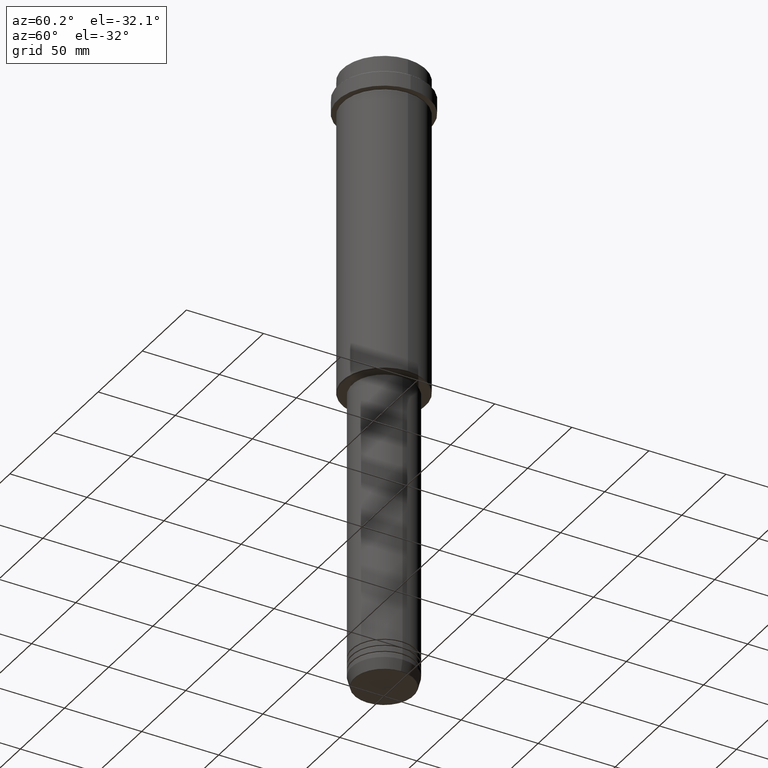
[diagram: clean part render]
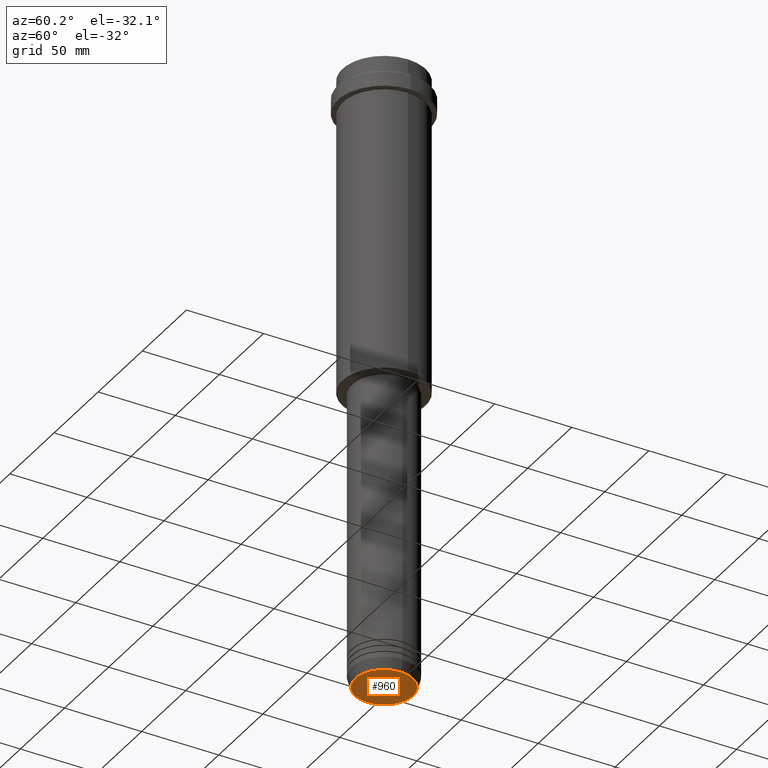
[diagram: same view with one face highlighted and labeled with its STEP entity id]
A machine part, auxiliary view. The second image highlights one B-rep face of the part: STEP entity #960.
In plain terms, the highlighted planar face has unit normal (0, -0, 1).
Its self-contained STEP definition (entity closure, byte-faithful):
#2 = DIRECTION ( 'NONE',  ( 1.000000000000000000, 0.000000000000000000, 0.000000000000000000 ) ) ;
#119 = FACE_OUTER_BOUND ( 'NONE', #1056, .T. ) ;
#202 = CARTESIAN_POINT ( 'NONE',  ( 0.000000000000000000, 0.000000000000000000, -403.0000000000000000 ) ) ;
#214 = PLANE ( 'NONE',  #1035 ) ;
#237 = CARTESIAN_POINT ( 'NONE',  ( -18.74069215899265473, 2.324645815916091924E-15, -403.0000000000000000 ) ) ;
#240 = CIRCLE ( 'NONE', #1337, 18.74069215899265473 ) ;
#340 = ORIENTED_EDGE ( 'NONE', *, *, #1054, .T. ) ;
#344 = DIRECTION ( 'NONE',  ( 0.000000000000000000, 0.000000000000000000, -1.000000000000000000 ) ) ;
#422 = DIRECTION ( 'NONE',  ( 0.000000000000000000, -0.000000000000000000, 1.000000000000000000 ) ) ;
#434 = DIRECTION ( 'NONE',  ( 1.000000000000000000, 0.000000000000000000, 0.000000000000000000 ) ) ;
#446 = CARTESIAN_POINT ( 'NONE',  ( 0.000000000000000000, 0.000000000000000000, -403.0000000000000000 ) ) ;
#534 = VERTEX_POINT ( 'NONE', #862 ) ;
#556 = CARTESIAN_POINT ( 'NONE',  ( 0.000000000000000000, 0.000000000000000000, -403.0000000000000000 ) ) ;
#700 = EDGE_CURVE ( 'NONE', #1130, #534, #1215, .T. ) ;
#862 = CARTESIAN_POINT ( 'NONE',  ( 18.74069215899265473, 0.000000000000000000, -403.0000000000000000 ) ) ;
#872 = DIRECTION ( 'NONE',  ( 0.000000000000000000, 0.000000000000000000, -1.000000000000000000 ) ) ;
#960 = ADVANCED_FACE ( 'NONE', ( #119 ), #214, .F. ) ;
#1029 = ORIENTED_EDGE ( 'NONE', *, *, #700, .T. ) ;
#1035 = AXIS2_PLACEMENT_3D ( 'NONE', #202, #422, #1401 ) ;
#1054 = EDGE_CURVE ( 'NONE', #534, #1130, #240, .T. ) ;
#1056 = EDGE_LOOP ( 'NONE', ( #340, #1029 ) ) ;
#1130 = VERTEX_POINT ( 'NONE', #237 ) ;
#1215 = CIRCLE ( 'NONE', #1237, 18.74069215899265473 ) ;
#1237 = AXIS2_PLACEMENT_3D ( 'NONE', #446, #344, #2 ) ;
#1337 = AXIS2_PLACEMENT_3D ( 'NONE', #556, #872, #434 ) ;
#1401 = DIRECTION ( 'NONE',  ( 1.000000000000000000, 0.000000000000000000, 0.000000000000000000 ) ) ;